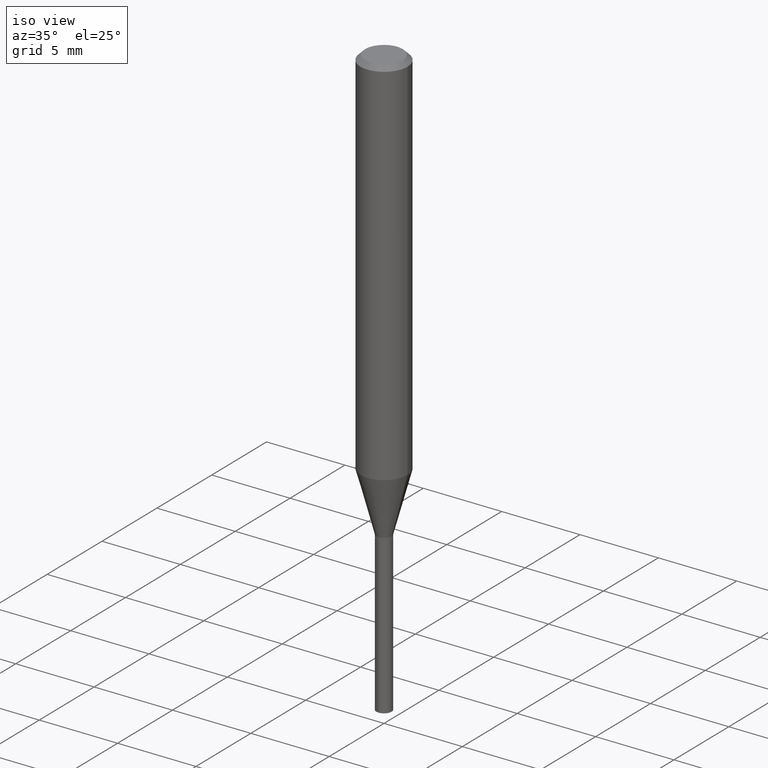
[diagram: clean part render]
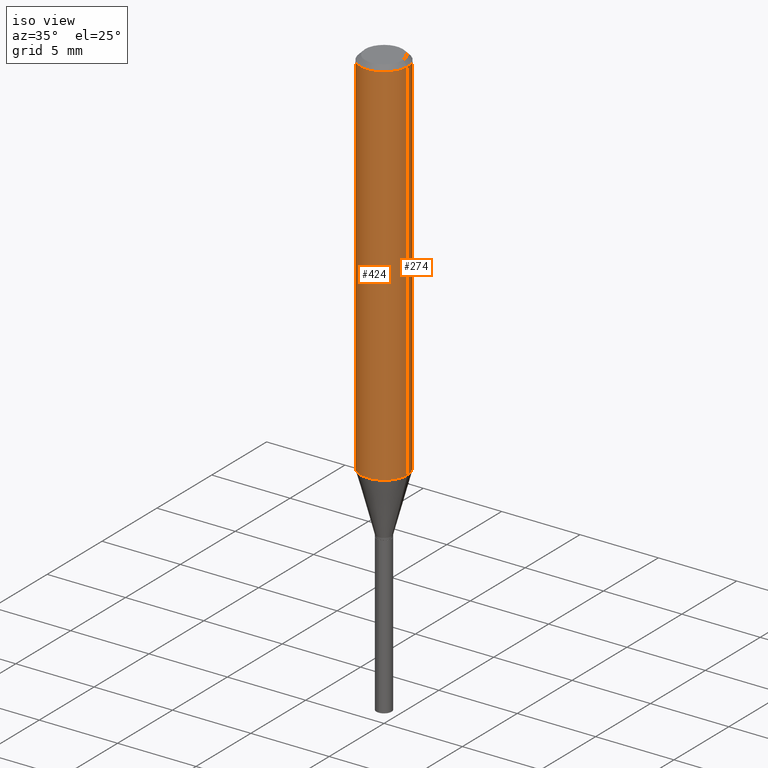
[diagram: same view with one multi-face feature highlighted, each face labeled with its STEP entity id]
A machine part, iso view. The highlighted faces form ONE feature: a constant-radius fillet chain: 2 tangent blend faces with common blend radius 1.4999 mm. The faces share edges in the B-rep.
Their STEP definitions:
[1] entity #424 (Cylinder):
#11 = VECTOR ( 'NONE', #488, 39.37007874015748143 ) ;
#31 = CARTESIAN_POINT ( 'NONE',  ( 0.05905000000000006077, -4.123439461173744764E-16, 2.879382386107503023E-30 ) ) ;
#46 = ORIENTED_EDGE ( 'NONE', *, *, #360, .T. ) ;
#64 = DIRECTION ( 'NONE',  ( -2.445468806185136597E-29, 3.491481338843145583E-15, 1.000000000000000000 ) ) ;
#67 = CARTESIAN_POINT ( 'NONE',  ( -0.05905000000000006077, 4.195754854663395916E-16, -2.904631170795524694E-30 ) ) ;
#69 = CARTESIAN_POINT ( 'NONE',  ( 0.05904999999999999832, -4.535783407291118600E-16, -0.01181000000000006871 ) ) ;
#82 = CIRCLE ( 'NONE', #287, 0.05905000000000011628 ) ;
#92 = EDGE_CURVE ( 'NONE', #220, #165, #229, .T. ) ;
#165 = VERTEX_POINT ( 'NONE', #69 ) ;
#180 = ORIENTED_EDGE ( 'NONE', *, *, #451, .F. ) ;
#212 = CARTESIAN_POINT ( 'NONE',  ( 2.888098660104663328E-31, -4.123439461173779030E-17, -0.01181000000000006871 ) ) ;
#218 = DIRECTION ( 'NONE',  ( 1.000000000000000000, -6.982962677686266711E-15, 0.000000000000000000 ) ) ;
#220 = VERTEX_POINT ( 'NONE', #276 ) ;
#229 = LINE ( 'NONE', #31, #11 ) ;
#250 = EDGE_CURVE ( 'NONE', #325, #165, #354, .T. ) ;
#257 = DIRECTION ( 'NONE',  ( -2.445468806185136597E-29, 3.491481338843145583E-15, 1.000000000000000000 ) ) ;
#258 = ORIENTED_EDGE ( 'NONE', *, *, #92, .T. ) ;
#270 = LINE ( 'NONE', #67, #345 ) ;
#276 = CARTESIAN_POINT ( 'NONE',  ( 0.05905000000000011628, -3.690698839977605827E-15, -0.9389581600761093272 ) ) ;
#285 = VERTEX_POINT ( 'NONE', #363 ) ;
#287 = AXIS2_PLACEMENT_3D ( 'NONE', #446, #335, #407 ) ;
#296 = DIRECTION ( 'NONE',  ( 1.000000000000000000, -6.982962677686266711E-15, 4.876176775795935793E-29 ) ) ;
#325 = VERTEX_POINT ( 'NONE', #327 ) ;
#326 = AXIS2_PLACEMENT_3D ( 'NONE', #212, #257, #218 ) ;
#327 = CARTESIAN_POINT ( 'NONE',  ( -0.05904999999999999832, -1.240219158769643839E-15, -0.01181000000000006871 ) ) ;
#330 = EDGE_LOOP ( 'NONE', ( #180, #46, #258, #357 ) ) ;
#335 = DIRECTION ( 'NONE',  ( -2.445468806185136597E-29, 3.491481338843145583E-15, 1.000000000000000000 ) ) ;
#338 = DIRECTION ( 'NONE',  ( -2.445468806185136877E-29, 3.491481338843145188E-15, 1.000000000000000000 ) ) ;
#345 = VECTOR ( 'NONE', #338, 39.37007874015748143 ) ;
#354 = CIRCLE ( 'NONE', #326, 0.05904999999999999832 ) ;
#357 = ORIENTED_EDGE ( 'NONE', *, *, #250, .F. ) ;
#360 = EDGE_CURVE ( 'NONE', #285, #220, #82, .T. ) ;
#363 = CARTESIAN_POINT ( 'NONE',  ( -0.05905000000000011628, -2.858779408393891019E-15, -0.9389581600761093272 ) ) ;
#373 = CYLINDRICAL_SURFACE ( 'NONE', #423, 0.05905000000000006077 ) ;
#376 = FACE_OUTER_BOUND ( 'NONE', #330, .T. ) ;
#384 = CARTESIAN_POINT ( 'NONE',  ( 0.000000000000000000, 0.000000000000000000, 0.000000000000000000 ) ) ;
#407 = DIRECTION ( 'NONE',  ( 1.000000000000000000, -6.982962677686266711E-15, 0.000000000000000000 ) ) ;
#423 = AXIS2_PLACEMENT_3D ( 'NONE', #384, #64, #296 ) ;
#424 = ADVANCED_FACE ( 'NONE', ( #376 ), #373, .T. ) ;
#446 = CARTESIAN_POINT ( 'NONE',  ( 2.296192890779115262E-29, -3.278354893860230512E-15, -0.9389581600761093272 ) ) ;
#451 = EDGE_CURVE ( 'NONE', #285, #325, #270, .T. ) ;
#488 = DIRECTION ( 'NONE',  ( -2.445468806185136877E-29, 3.491481338843145188E-15, 1.000000000000000000 ) ) ;
[2] entity #274 (Cylinder):
#11 = VECTOR ( 'NONE', #488, 39.37007874015748143 ) ;
#16 = CYLINDRICAL_SURFACE ( 'NONE', #447, 0.05905000000000006077 ) ;
#24 = ORIENTED_EDGE ( 'NONE', *, *, #451, .T. ) ;
#31 = CARTESIAN_POINT ( 'NONE',  ( 0.05905000000000006077, -4.123439461173744764E-16, 2.879382386107503023E-30 ) ) ;
#52 = ORIENTED_EDGE ( 'NONE', *, *, #429, .T. ) ;
#55 = ORIENTED_EDGE ( 'NONE', *, *, #133, .F. ) ;
#59 = CIRCLE ( 'NONE', #70, 0.05905000000000011628 ) ;
#67 = CARTESIAN_POINT ( 'NONE',  ( -0.05905000000000006077, 4.195754854663395916E-16, -2.904631170795524694E-30 ) ) ;
#69 = CARTESIAN_POINT ( 'NONE',  ( 0.05904999999999999832, -4.535783407291118600E-16, -0.01181000000000006871 ) ) ;
#70 = AXIS2_PLACEMENT_3D ( 'NONE', #108, #144, #417 ) ;
#92 = EDGE_CURVE ( 'NONE', #220, #165, #229, .T. ) ;
#107 = EDGE_LOOP ( 'NONE', ( #52, #24, #55, #438 ) ) ;
#108 = CARTESIAN_POINT ( 'NONE',  ( 2.296192890779115262E-29, -3.278354893860230512E-15, -0.9389581600761093272 ) ) ;
#121 = CARTESIAN_POINT ( 'NONE',  ( 2.888098660104663328E-31, -4.123439461173779030E-17, -0.01181000000000006871 ) ) ;
#133 = EDGE_CURVE ( 'NONE', #165, #325, #216, .T. ) ;
#144 = DIRECTION ( 'NONE',  ( -2.445468806185136597E-29, 3.491481338843145583E-15, 1.000000000000000000 ) ) ;
#146 = DIRECTION ( 'NONE',  ( 1.000000000000000000, -6.982962677686266711E-15, 0.000000000000000000 ) ) ;
#165 = VERTEX_POINT ( 'NONE', #69 ) ;
#216 = CIRCLE ( 'NONE', #484, 0.05904999999999999832 ) ;
#220 = VERTEX_POINT ( 'NONE', #276 ) ;
#229 = LINE ( 'NONE', #31, #11 ) ;
#270 = LINE ( 'NONE', #67, #345 ) ;
#274 = ADVANCED_FACE ( 'NONE', ( #329 ), #16, .T. ) ;
#276 = CARTESIAN_POINT ( 'NONE',  ( 0.05905000000000011628, -3.690698839977605827E-15, -0.9389581600761093272 ) ) ;
#285 = VERTEX_POINT ( 'NONE', #363 ) ;
#320 = CARTESIAN_POINT ( 'NONE',  ( 0.000000000000000000, 0.000000000000000000, 0.000000000000000000 ) ) ;
#325 = VERTEX_POINT ( 'NONE', #327 ) ;
#327 = CARTESIAN_POINT ( 'NONE',  ( -0.05904999999999999832, -1.240219158769643839E-15, -0.01181000000000006871 ) ) ;
#329 = FACE_OUTER_BOUND ( 'NONE', #107, .T. ) ;
#338 = DIRECTION ( 'NONE',  ( -2.445468806185136877E-29, 3.491481338843145188E-15, 1.000000000000000000 ) ) ;
#345 = VECTOR ( 'NONE', #338, 39.37007874015748143 ) ;
#363 = CARTESIAN_POINT ( 'NONE',  ( -0.05905000000000011628, -2.858779408393891019E-15, -0.9389581600761093272 ) ) ;
#408 = DIRECTION ( 'NONE',  ( -2.445468806185136597E-29, 3.491481338843145583E-15, 1.000000000000000000 ) ) ;
#417 = DIRECTION ( 'NONE',  ( 1.000000000000000000, -6.982962677686266711E-15, 0.000000000000000000 ) ) ;
#429 = EDGE_CURVE ( 'NONE', #220, #285, #59, .T. ) ;
#430 = DIRECTION ( 'NONE',  ( -2.445468806185136597E-29, 3.491481338843145583E-15, 1.000000000000000000 ) ) ;
#438 = ORIENTED_EDGE ( 'NONE', *, *, #92, .F. ) ;
#447 = AXIS2_PLACEMENT_3D ( 'NONE', #320, #430, #474 ) ;
#451 = EDGE_CURVE ( 'NONE', #285, #325, #270, .T. ) ;
#474 = DIRECTION ( 'NONE',  ( 1.000000000000000000, -6.982962677686266711E-15, 4.876176775795935793E-29 ) ) ;
#484 = AXIS2_PLACEMENT_3D ( 'NONE', #121, #408, #146 ) ;
#488 = DIRECTION ( 'NONE',  ( -2.445468806185136877E-29, 3.491481338843145188E-15, 1.000000000000000000 ) ) ;